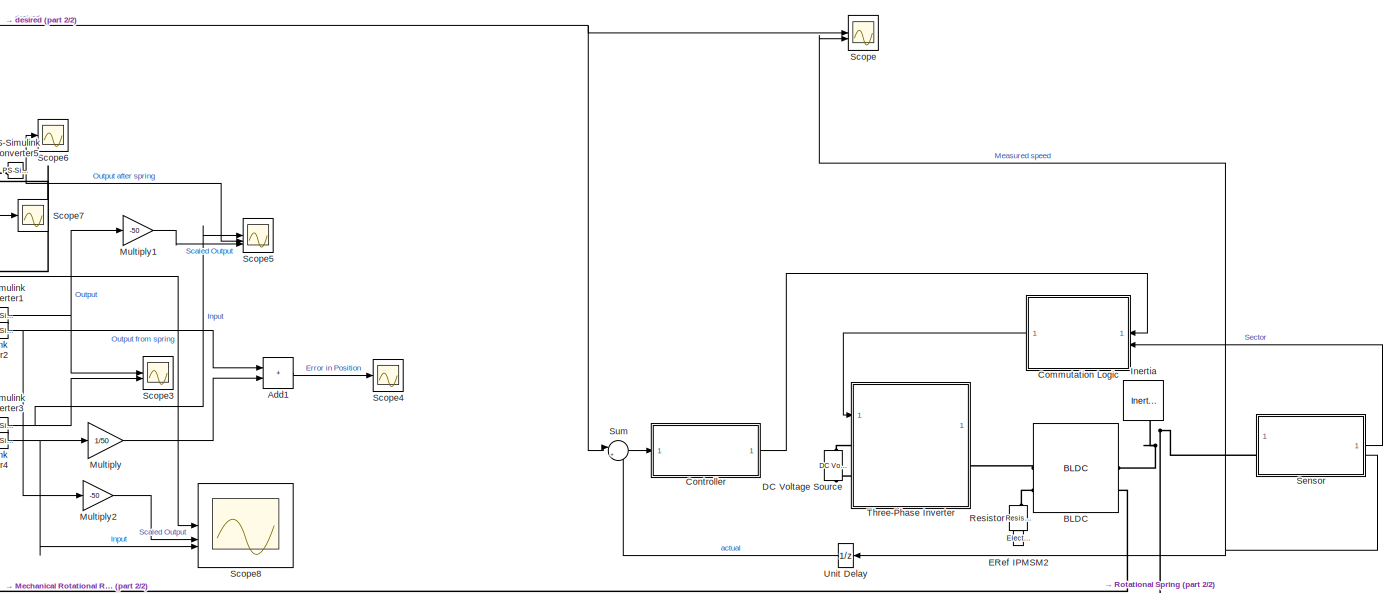
[diagram: root canvas - part 1/2, right side, full height]
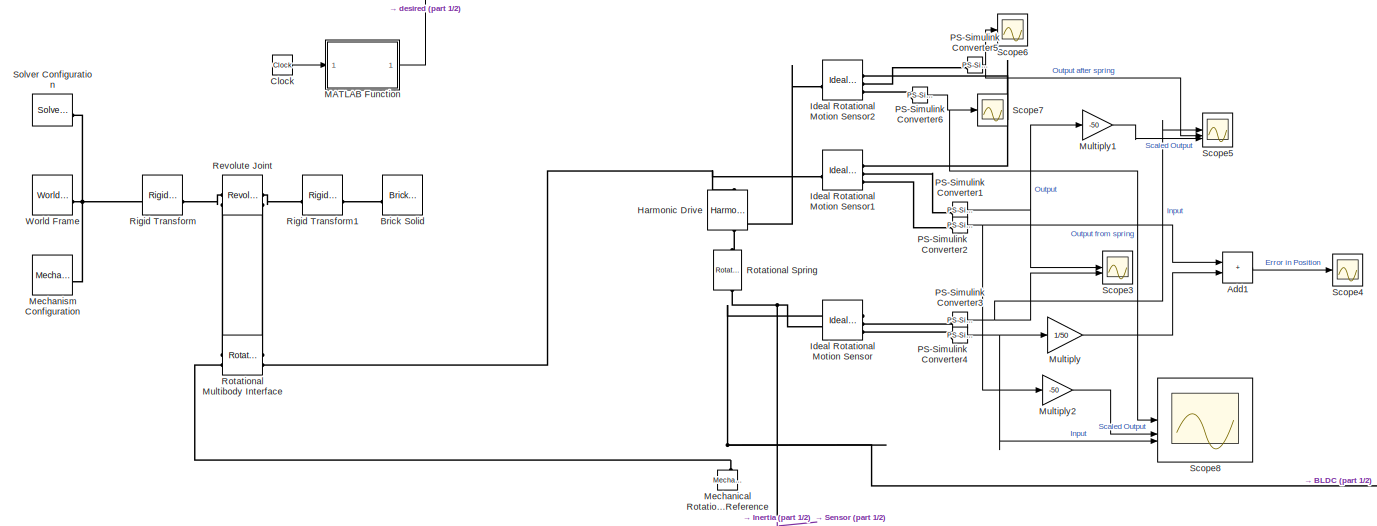
[diagram: root canvas - part 2/2, left side, full height]
MODEL slx_65fdd9fc3e5f
KIND model
CONFIG AbsTol = auto
CONFIG EnableMultiTasking = on
CONFIG FixedStep = auto
CONFIG MaxStep = auto
CONFIG MinStep = auto
CONFIG RelTol = 1e-3
CONFIG SampleTimeConstraint = Unconstrained
CONFIG SolverName = VariableStepAuto
CONFIG StartTime = 0.0
CONFIG StopTime = 10
BLOCK [Sum] Add1
  IconShape = rectangular
BLOCK [Reference] BLDC  REF=ee_lib/Electromechanical/Permanent Magnet/BLDC
  SourceBlock = ee_lib/Electromechanical/Permanent Magnet/BLDC
  SourceType = BLDC
BLOCK [Reference] Brick Solid  REF=sm_lib/Body Elements/Brick Solid
  NameLocation = right
  SourceBlock = sm_lib/Body Elements/Brick Solid
  SourceType = Brick Solid
BLOCK [Clock] Clock
  DisplayTime = on
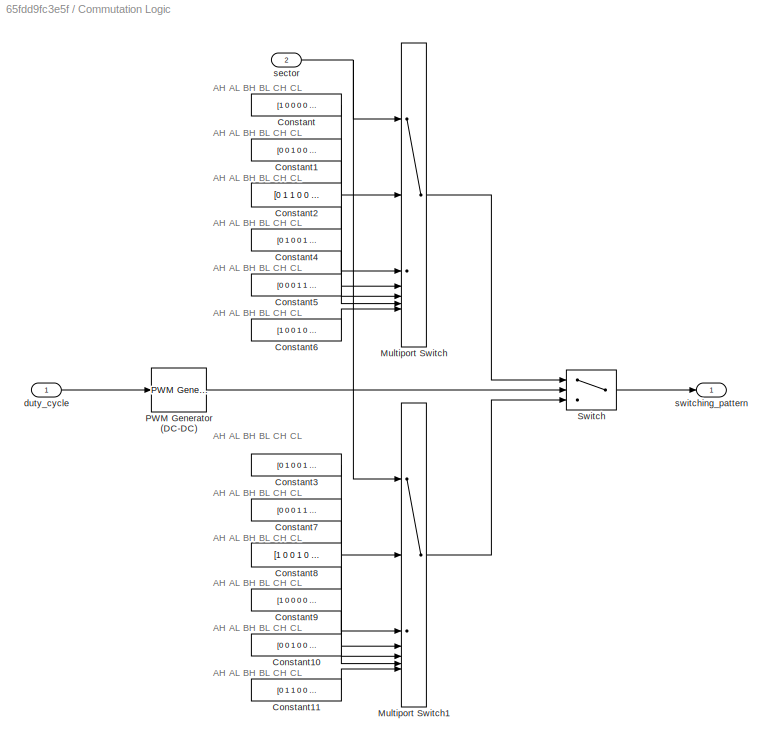
BLOCK [SubSystem] Commutation Logic
  ShowPortLabels = none
BLOCK [Outport] Commutation Logic/  switching_pattern
  VectorParamsAs1DForOutWhenUnconnected = off
BLOCK [Constant] Commutation Logic/Constant
  Value = [1 0 0 0 0 1]
BLOCK [Constant] Commutation Logic/Constant1
  Value = [0 0 1 0 0 1]
BLOCK [Constant] Commutation Logic/Constant10
  Value = [0 0 1 0 0 1]
BLOCK [Constant] Commutation Logic/Constant11
  Value = [0 1 1 0 0 0]
BLOCK [Constant] Commutation Logic/Constant2
  Value = [0 1 1 0 0 0]
BLOCK [Constant] Commutation Logic/Constant3
  Value = [0 1 0 0 1 0]
BLOCK [Constant] Commutation Logic/Constant4
  Value = [0 1 0 0 1 0]
BLOCK [Constant] Commutation Logic/Constant5
  Value = [0 0 0 1 1 0]
BLOCK [Constant] Commutation Logic/Constant6
  Value = [1 0 0 1 0 0]
BLOCK [Constant] Commutation Logic/Constant7
  Value = [0 0 0 1 1 0]
BLOCK [Constant] Commutation Logic/Constant8
  Value = [1 0 0 1 0 0]
BLOCK [Constant] Commutation Logic/Constant9
  Value = [1 0 0 0 0 1]
BLOCK [MultiPortSwitch] Commutation Logic/Multiport Switch
  InputSameDT = off
  Inputs = 6
  SaturateOnIntegerOverflow = off
BLOCK [MultiPortSwitch] Commutation Logic/Multiport Switch1
  InputSameDT = off
  Inputs = 6
  SaturateOnIntegerOverflow = off
BLOCK [Reference] Commutation Logic/PWM Generator (DC-DC)  REF=spsPWMGeneratorDCDCLib/PWM Generator
(DC-DC)
  LibrarySourceBlock = sps_lib/Power Electronics/Power Electronics Control/PWM Generator\n(DC-DC)
  SourceBlock = spsPWMGeneratorDCDCLib/PWM Generator\n(DC-DC)
  SourceType = PWM Generator (DC-DC)
BLOCK [Switch] Commutation Logic/Switch
  Criteria = u2 > Threshold
  InputSameDT = off
  SaturateOnIntegerOverflow = off
  Threshold = 0.5
BLOCK [Inport] Commutation Logic/duty_cycle
BLOCK [Inport] Commutation Logic/sector
  NameLocation = top
  Port = 2
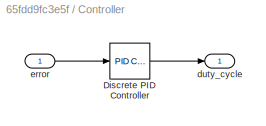
BLOCK [SubSystem] Controller
BLOCK [Reference] Controller/Discrete PID Controller  REF=slpidlib/PID Controller
  SourceBlock = slpidlib/PID Controller
  SourceType = PID 1dof
BLOCK [Outport] Controller/duty_cycle
BLOCK [Inport] Controller/error
BLOCK [Reference] DC Voltage Source  REF=ee_lib/Additional
Components/SPICE Sources/DC Voltage Source
  NameLocation = right
  SourceBlock = ee_lib/Additional\nComponents/SPICE Sources/DC Voltage Source
  SourceType = DC Voltage Source
BLOCK [Reference] ERef IPMSM2  REF=fl_lib/Electrical/Electrical Elements/Electrical Reference
  NameLocation = right
  SourceBlock = fl_lib/Electrical/Electrical Elements/Electrical Reference
  SourceType = Electrical Reference
BLOCK [Reference] Harmonic Drive  REF=sdl_lib/Gears/Harmonic Drive
  NameLocation = right
  SourceBlock = sdl_lib/Gears/Harmonic Drive
  SourceType = Harmonic Drive
BLOCK [Reference] Ideal Rotational Motion Sensor  REF=fl_lib/Mechanical/Mechanical Sensors/Ideal Rotational
Motion Sensor
  SourceBlock = fl_lib/Mechanical/Mechanical Sensors/Ideal Rotational\nMotion Sensor
  SourceType = Ideal Rotational\nMotion Sensor
BLOCK [Reference] Ideal Rotational Motion Sensor1  REF=fl_lib/Mechanical/Mechanical Sensors/Ideal Rotational
Motion Sensor
  SourceBlock = fl_lib/Mechanical/Mechanical Sensors/Ideal Rotational\nMotion Sensor
  SourceType = Ideal Rotational\nMotion Sensor
BLOCK [Reference] Ideal Rotational Motion Sensor2  REF=fl_lib/Mechanical/Mechanical Sensors/Ideal Rotational
Motion Sensor
  SourceBlock = fl_lib/Mechanical/Mechanical Sensors/Ideal Rotational\nMotion Sensor
  SourceType = Ideal Rotational\nMotion Sensor
BLOCK [Reference] Inertia  REF=fl_lib/Mechanical/Rotational Elements/Inertia
  NameLocation = left
  SourceBlock = fl_lib/Mechanical/Rotational Elements/Inertia
  SourceType = Inertia
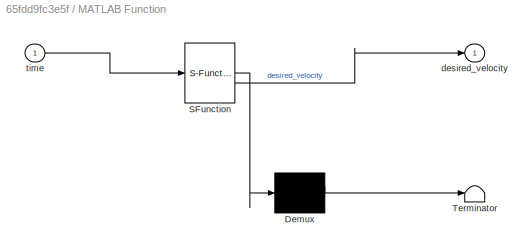
BLOCK [SubSystem] MATLAB Function
  ErrorFcn = Stateflow.Translate.translate
  LibrarySourceBlock = simulink/User-Defined\nFunctions/MATLAB Function
  PermitHierarchicalResolution = ExplicitOnly
  SFBlockType = MATLAB Function
  TreatAsAtomicUnit = on
BLOCK [Demux] MATLAB Function/ Demux 
  Outputs = 1
BLOCK [S-Function] MATLAB Function/ SFunction 
  EnableBusSupport = on
  FunctionName = sf_sfun
  PortCounts = [1 2]
  SFcnIsStateOwnerBlock = off
  SFunctionDeploymentMode = off
  Tag = Stateflow S-Function 2
BLOCK [Terminator] MATLAB Function/ Terminator 
BLOCK [Outport] MATLAB Function/desired_velocity
BLOCK [Inport] MATLAB Function/time
BLOCK [Reference] Mechanical Rotational Reference  REF=fl_lib/Mechanical/Rotational Elements/Mechanical
Rotational Reference
  NameLocation = right
  SourceBlock = fl_lib/Mechanical/Rotational Elements/Mechanical\nRotational Reference
  SourceType = Mechanical\nRotational Reference
BLOCK [Reference] Mechanism Configuration  REF=sm_lib/Utilities/Mechanism
Configuration
  SourceBlock = sm_lib/Utilities/Mechanism\nConfiguration
  SourceType = Mechanism\nConfiguration
BLOCK [Gain] Multiply
  Gain = 1/50
BLOCK [Gain] Multiply1
  Gain = -50
BLOCK [Gain] Multiply2
  Gain = -50
BLOCK [Reference] PS-Simulink Converter1  REF=nesl_utility/PS-Simulink
Converter
  SourceBlock = nesl_utility/PS-Simulink\nConverter
  SourceType = PS-Simulink\nConverter
BLOCK [Reference] PS-Simulink Converter2  REF=nesl_utility/PS-Simulink
Converter
  SourceBlock = nesl_utility/PS-Simulink\nConverter
  SourceType = PS-Simulink\nConverter
BLOCK [Reference] PS-Simulink Converter3  REF=nesl_utility/PS-Simulink
Converter
  SourceBlock = nesl_utility/PS-Simulink\nConverter
  SourceType = PS-Simulink\nConverter
BLOCK [Reference] PS-Simulink Converter4  REF=nesl_utility/PS-Simulink
Converter
  SourceBlock = nesl_utility/PS-Simulink\nConverter
  SourceType = PS-Simulink\nConverter
BLOCK [Reference] PS-Simulink Converter5  REF=nesl_utility/PS-Simulink
Converter
  SourceBlock = nesl_utility/PS-Simulink\nConverter
  SourceType = PS-Simulink\nConverter
BLOCK [Reference] PS-Simulink Converter6  REF=nesl_utility/PS-Simulink
Converter
  SourceBlock = nesl_utility/PS-Simulink\nConverter
  SourceType = PS-Simulink\nConverter
BLOCK [Reference] Resistor  REF=fl_lib/Electrical/Electrical Elements/Resistor
  NameLocation = left
  SourceBlock = fl_lib/Electrical/Electrical Elements/Resistor
  SourceType = Resistor
BLOCK [Reference] Revolute Joint  REF=sm_lib/Joints/Revolute Joint
  SourceBlock = sm_lib/Joints/Revolute Joint
  SourceType = Revolute Joint
BLOCK [Reference] Rigid Transform  REF=sm_lib/Frames and
Transforms/Rigid
Transform
  SourceBlock = sm_lib/Frames and\nTransforms/Rigid\nTransform
  SourceType = Rigid\nTransform
BLOCK [Reference] Rigid Transform1  REF=sm_lib/Frames and
Transforms/Rigid
Transform
  NameLocation = top
  SourceBlock = sm_lib/Frames and\nTransforms/Rigid\nTransform
  SourceType = Rigid\nTransform
BLOCK [Reference] Rotational Multibody Interface  REF=fl_lib/Mechanical/Multibody Interfaces/Rotational Multibody
Interface
  SourceBlock = fl_lib/Mechanical/Multibody Interfaces/Rotational Multibody\nInterface
  SourceType = Rotational Multibody\nInterface
BLOCK [Reference] Rotational Spring  REF=fl_lib/Mechanical/Rotational Elements/Rotational Spring
  NameLocation = left
  SourceBlock = fl_lib/Mechanical/Rotational Elements/Rotational Spring
  SourceType = Rotational Spring
BLOCK [Scope] Scope
  Floating = off
  NumInputPorts = 2
  ScopeSpecificationString = Simulink.scopes.TimeScopeBlockCfg('CurrentConfiguration', extmgr.ConfigurationSet(extmgr.Configuration('Core','General UI',true),extmgr.Configuration('Core','Source UI',true),extmgr.Configuration('Sources','WiredSimulink',true,'DataLoggingVariableName','ScopeData1'),extmgr.Configuration('Visuals','Time Domain',true,'SerializedDisplays',{struct('MinYLimReal','-656.0249','MaxYLimReal','920.76192','Y...<+1510ch>
BLOCK [Scope] Scope3
  Floating = off
  NumInputPorts = 2
  ScopeSpecificationString = Simulink.scopes.TimeScopeBlockCfg('CurrentConfiguration', extmgr.ConfigurationSet(extmgr.Configuration('Core','General UI',true),extmgr.Configuration('Core','Source UI',true),extmgr.Configuration('Sources','WiredSimulink',true,'DataLoggingVariableName','ScopeData3'),extmgr.Configuration('Visuals','Time Domain',true,'SerializedDisplays',{struct('MinYLimReal','-720.64429','MaxYLimReal','828.31186','...<+1457ch>
BLOCK [Scope] Scope4
  Floating = off
  NumInputPorts = 1
  ScopeSpecificationString = Simulink.scopes.TimeScopeBlockCfg('CurrentConfiguration', extmgr.ConfigurationSet(extmgr.Configuration('Core','General UI',true),extmgr.Configuration('Core','Source UI',true),extmgr.Configuration('Sources','WiredSimulink',true,'DataLoggingVariableName','ScopeData4'),extmgr.Configuration('Visuals','Time Domain',true,'SerializedDisplays',{struct('MinYLimReal','-0.00059','MaxYLimReal','0.00347','YLab...<+1429ch>
BLOCK [Scope] Scope5
  Floating = off
  NumInputPorts = 3
  ScopeSpecificationString = Simulink.scopes.TimeScopeBlockCfg('CurrentConfiguration', extmgr.ConfigurationSet(extmgr.Configuration('Core','General UI',true),extmgr.Configuration('Core','Source UI',true),extmgr.Configuration('Sources','WiredSimulink',true,'DataLoggingVariableName','ScopeData1'),extmgr.Configuration('Visuals','Time Domain',true,'SerializedDisplays',{struct('MinYLimReal','-68.69877','MaxYLimReal','96.42196','YL...<+1546ch>
BLOCK [Scope] Scope6
  Floating = off
  NumInputPorts = 1
  ScopeSpecificationString = Simulink.scopes.TimeScopeBlockCfg('CurrentConfiguration', extmgr.ConfigurationSet(extmgr.Configuration('Core','General UI',true),extmgr.Configuration('Core','Source UI',true),extmgr.Configuration('Sources','WiredSimulink',true,'DataLoggingVariableName','ScopeData2'),extmgr.Configuration('Visuals','Time Domain',true,'SerializedDisplays',{struct('MinYLimReal','-200.74154','MaxYLimReal','1054.86572',...<+1468ch>
BLOCK [Scope] Scope7
  Floating = off
  NumInputPorts = 1
  ScopeSpecificationString = Simulink.scopes.TimeScopeBlockCfg('CurrentConfiguration', extmgr.ConfigurationSet(extmgr.Configuration('Core','General UI',true),extmgr.Configuration('Core','Source UI',true),extmgr.Configuration('Sources','WiredSimulink',true,'DataLoggingVariableName','ScopeData3'),extmgr.Configuration('Visuals','Time Domain',true),extmgr.Configuration('Tools','Plot Navigation',true),extmgr.Configuration('Tools',...<+40ch>
BLOCK [Scope] Scope8
  Floating = off
  NumInputPorts = 3
  ScopeSpecificationString = Simulink.scopes.TimeScopeBlockCfg('CurrentConfiguration', extmgr.ConfigurationSet(extmgr.Configuration('Core','General UI',true),extmgr.Configuration('Core','Source UI',true),extmgr.Configuration('Sources','WiredSimulink',true,'DataLoggingVariableName','ScopeData4'),extmgr.Configuration('Visuals','Time Domain',true,'SerializedDisplays',{struct('MinYLimReal','-0.22995','MaxYLimReal','2.05264','YLab...<+1539ch>
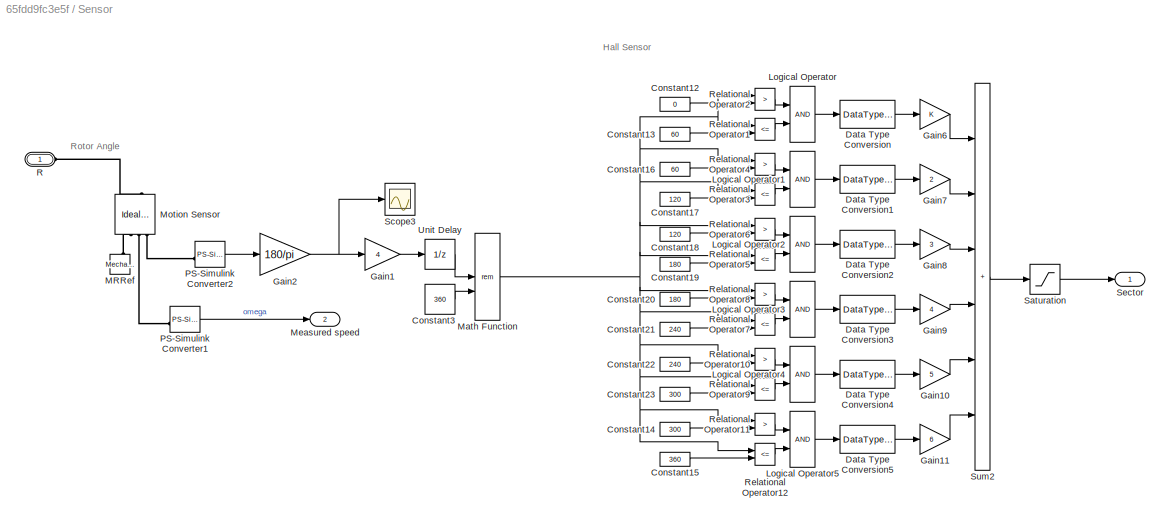
BLOCK [SubSystem] Sensor
BLOCK [Constant] Sensor/Constant12
  Value = 0
BLOCK [Constant] Sensor/Constant13
  Value = 60
BLOCK [Constant] Sensor/Constant14
  Value = 300
BLOCK [Constant] Sensor/Constant15
  Value = 360
BLOCK [Constant] Sensor/Constant16
  Value = 60
BLOCK [Constant] Sensor/Constant17
  Value = 120
BLOCK [Constant] Sensor/Constant18
  Value = 120
BLOCK [Constant] Sensor/Constant19
  Value = 180
BLOCK [Constant] Sensor/Constant20
  Value = 180
BLOCK [Constant] Sensor/Constant21
  Value = 240
BLOCK [Constant] Sensor/Constant22
  Value = 240
BLOCK [Constant] Sensor/Constant23
  Value = 300
BLOCK [Constant] Sensor/Constant3
  Value = 360
BLOCK [DataTypeConversion] Sensor/Data Type Conversion
BLOCK [DataTypeConversion] Sensor/Data Type Conversion1
BLOCK [DataTypeConversion] Sensor/Data Type Conversion2
BLOCK [DataTypeConversion] Sensor/Data Type Conversion3
BLOCK [DataTypeConversion] Sensor/Data Type Conversion4
BLOCK [DataTypeConversion] Sensor/Data Type Conversion5
BLOCK [Gain] Sensor/Gain1
  Gain = 4
  NameLocation = top
BLOCK [Gain] Sensor/Gain10
  Gain = 5
  OutDataTypeStr = Inherit: Same as input
  ParamDataTypeStr = Inherit: Same as input
  SaturateOnIntegerOverflow = on
BLOCK [Gain] Sensor/Gain11
  Gain = 6
  OutDataTypeStr = Inherit: Same as input
  ParamDataTypeStr = Inherit: Same as input
  SaturateOnIntegerOverflow = on
BLOCK [Gain] Sensor/Gain2
  Gain = 180/pi
BLOCK [Gain] Sensor/Gain6
  OutDataTypeStr = Inherit: Same as input
  ParamDataTypeStr = Inherit: Same as input
  SaturateOnIntegerOverflow = on
BLOCK [Gain] Sensor/Gain7
  Gain = 2
  OutDataTypeStr = Inherit: Same as input
  ParamDataTypeStr = Inherit: Same as input
  SaturateOnIntegerOverflow = on
BLOCK [Gain] Sensor/Gain8
  Gain = 3
  OutDataTypeStr = Inherit: Same as input
  ParamDataTypeStr = Inherit: Same as input
  SaturateOnIntegerOverflow = on
BLOCK [Gain] Sensor/Gain9
  Gain = 4
  OutDataTypeStr = Inherit: Same as input
  ParamDataTypeStr = Inherit: Same as input
  SaturateOnIntegerOverflow = on
BLOCK [Logic] Sensor/Logical Operator
BLOCK [Logic] Sensor/Logical Operator1
BLOCK [Logic] Sensor/Logical Operator2
BLOCK [Logic] Sensor/Logical Operator3
BLOCK [Logic] Sensor/Logical Operator4
BLOCK [Logic] Sensor/Logical Operator5
BLOCK [Reference] Sensor/MRRef  REF=fl_lib/Mechanical/Rotational Elements/Mechanical
Rotational Reference
  NameLocation = left
  SourceBlock = fl_lib/Mechanical/Rotational Elements/Mechanical\nRotational Reference
  SourceType = Mechanical\nRotational Reference
BLOCK [Math] Sensor/Math Function
  Operator = rem
  SignedPower = on
BLOCK [Outport] Sensor/Measured speed
  Port = 2
BLOCK [Reference] Sensor/Motion Sensor  REF=fl_lib/Mechanical/Mechanical Sensors/Ideal Rotational
Motion Sensor
  NameLocation = right
  SourceBlock = fl_lib/Mechanical/Mechanical Sensors/Ideal Rotational\nMotion Sensor
  SourceType = Ideal Rotational\nMotion Sensor
BLOCK [Reference] Sensor/PS-Simulink Converter1  REF=nesl_utility/PS-Simulink
Converter
  SourceBlock = nesl_utility/PS-Simulink\nConverter
  SourceType = PS-Simulink\nConverter
BLOCK [Reference] Sensor/PS-Simulink Converter2  REF=nesl_utility/PS-Simulink
Converter
  SourceBlock = nesl_utility/PS-Simulink\nConverter
  SourceType = PS-Simulink\nConverter
BLOCK [PMIOPort] Sensor/R
  NameLocation = top
  Side = Left
BLOCK [RelationalOperator] Sensor/Relational Operator1
  Operator = <=
BLOCK [RelationalOperator] Sensor/Relational Operator10
  Operator = >
BLOCK [RelationalOperator] Sensor/Relational Operator11
  Operator = >
BLOCK [RelationalOperator] Sensor/Relational Operator12
  Operator = <=
BLOCK [RelationalOperator] Sensor/Relational Operator2
  Operator = >
BLOCK [RelationalOperator] Sensor/Relational Operator3
  Operator = <=
BLOCK [RelationalOperator] Sensor/Relational Operator4
  Operator = >
BLOCK [RelationalOperator] Sensor/Relational Operator5
  Operator = <=
BLOCK [RelationalOperator] Sensor/Relational Operator6
  Operator = >
BLOCK [RelationalOperator] Sensor/Relational Operator7
  Operator = <=
BLOCK [RelationalOperator] Sensor/Relational Operator8
  Operator = >
BLOCK [RelationalOperator] Sensor/Relational Operator9
  Operator = <=
BLOCK [Saturate] Sensor/Saturation
  LowerLimit = 1
  UpperLimit = 6
BLOCK [Scope] Sensor/Scope3
  Floating = off
  NumInputPorts = 1
  ScopeSpecificationString = Simulink.scopes.TimeScopeBlockCfg('CurrentConfiguration', extmgr.ConfigurationSet(extmgr.Configuration('Core','General UI',true),extmgr.Configuration('Core','Source UI',true),extmgr.Configuration('Sources','WiredSimulink',true,'DataLoggingVariableName','ScopeData1','DataLogging',true,'DataLoggingSaveFormat','StructureWithTime'),extmgr.Configuration('Visuals','Time Domain',true,'SerializedDisplays'...<+1543ch>
BLOCK [Outport] Sensor/Sector
  NameLocation = top
BLOCK [Sum] Sensor/Sum2
  IconShape = rectangular
  InputSameDT = on
  Inputs = ++++++
  OutDataTypeStr = Inherit: Same as first input
  SaturateOnIntegerOverflow = on
BLOCK [UnitDelay] Sensor/Unit Delay
  HasFrameUpgradeWarning = on
  SampleTime = Ts_motor
BLOCK [Reference] Solver Configuration  REF=nesl_utility/Solver
Configuration
  SourceBlock = nesl_utility/Solver\nConfiguration
  SourceType = Solver\nConfiguration
BLOCK [Sum] Sum
  Inputs = |+-
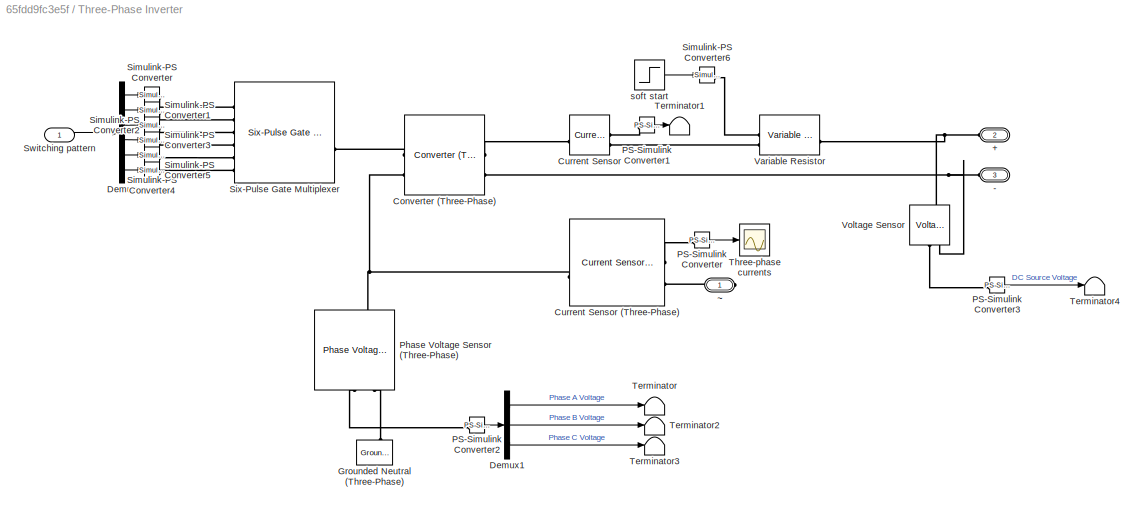
BLOCK [SubSystem] Three-Phase Inverter
BLOCK [PMIOPort] Three-Phase Inverter/+
  NameLocation = top
  Port = 2
  Side = Left
BLOCK [PMIOPort] Three-Phase Inverter/-
  NameLocation = top
  Port = 3
  Side = Left
BLOCK [Reference] Three-Phase Inverter/Converter (Three-Phase)  REF=ee_lib/Semiconductors &
Converters/Converters/Converter
(Three-Phase)
  SourceBlock = ee_lib/Semiconductors &\nConverters/Converters/Converter\n(Three-Phase)
  SourceType = Converter\n(Three-Phase)
BLOCK [Reference] Three-Phase Inverter/Current Sensor  REF=fl_lib/Electrical/Electrical Sensors/Current Sensor
  SourceBlock = fl_lib/Electrical/Electrical Sensors/Current Sensor
  SourceType = Current Sensor
BLOCK [Reference] Three-Phase Inverter/Current Sensor (Three-Phase)  REF=ee_lib/Sensors &
Transducers/Current Sensor
(Three-Phase)
  SourceBlock = ee_lib/Sensors &\nTransducers/Current Sensor\n(Three-Phase)
  SourceType = Current Sensor\n(Three-Phase)
BLOCK [Demux] Three-Phase Inverter/Demux
  Outputs = 6
BLOCK [Demux] Three-Phase Inverter/Demux1
  Outputs = 3
BLOCK [Reference] Three-Phase Inverter/Grounded Neutral (Three-Phase)  REF=ee_lib/Connectors &
References/Grounded Neutral
(Three-Phase)
  NameLocation = right
  SourceBlock = ee_lib/Connectors &\nReferences/Grounded Neutral\n(Three-Phase)
  SourceType = Grounded Neutral\n(Three-Phase)
BLOCK [Reference] Three-Phase Inverter/PS-Simulink Converter  REF=nesl_utility/PS-Simulink
Converter
  SourceBlock = nesl_utility/PS-Simulink\nConverter
  SourceType = PS-Simulink\nConverter
BLOCK [Reference] Three-Phase Inverter/PS-Simulink Converter1  REF=nesl_utility/PS-Simulink
Converter
  SourceBlock = nesl_utility/PS-Simulink\nConverter
  SourceType = PS-Simulink\nConverter
BLOCK [Reference] Three-Phase Inverter/PS-Simulink Converter2  REF=nesl_utility/PS-Simulink
Converter
  SourceBlock = nesl_utility/PS-Simulink\nConverter
  SourceType = PS-Simulink\nConverter
BLOCK [Reference] Three-Phase Inverter/PS-Simulink Converter3  REF=nesl_utility/PS-Simulink
Converter
  SourceBlock = nesl_utility/PS-Simulink\nConverter
  SourceType = PS-Simulink\nConverter
BLOCK [Reference] Three-Phase Inverter/Phase Voltage Sensor (Three-Phase)  REF=ee_lib/Sensors &
Transducers/Phase Voltage Sensor
(Three-Phase)
  NameLocation = right
  SourceBlock = ee_lib/Sensors &\nTransducers/Phase Voltage Sensor\n(Three-Phase)
  SourceType = Phase Voltage Sensor\n(Three-Phase)
BLOCK [Reference] Three-Phase Inverter/Simulink-PS Converter  REF=nesl_utility/Simulink-PS
Converter
  SourceBlock = nesl_utility/Simulink-PS\nConverter
  SourceType = Simulink-PS\nConverter
BLOCK [Reference] Three-Phase Inverter/Simulink-PS Converter1  REF=nesl_utility/Simulink-PS
Converter
  SourceBlock = nesl_utility/Simulink-PS\nConverter
  SourceType = Simulink-PS\nConverter
BLOCK [Reference] Three-Phase Inverter/Simulink-PS Converter2  REF=nesl_utility/Simulink-PS
Converter
  SourceBlock = nesl_utility/Simulink-PS\nConverter
  SourceType = Simulink-PS\nConverter
BLOCK [Reference] Three-Phase Inverter/Simulink-PS Converter3  REF=nesl_utility/Simulink-PS
Converter
  SourceBlock = nesl_utility/Simulink-PS\nConverter
  SourceType = Simulink-PS\nConverter
BLOCK [Reference] Three-Phase Inverter/Simulink-PS Converter4  REF=nesl_utility/Simulink-PS
Converter
  SourceBlock = nesl_utility/Simulink-PS\nConverter
  SourceType = Simulink-PS\nConverter
BLOCK [Reference] Three-Phase Inverter/Simulink-PS Converter5  REF=nesl_utility/Simulink-PS
Converter
  SourceBlock = nesl_utility/Simulink-PS\nConverter
  SourceType = Simulink-PS\nConverter
BLOCK [Reference] Three-Phase Inverter/Simulink-PS Converter6  REF=nesl_utility/Simulink-PS
Converter
  SourceBlock = nesl_utility/Simulink-PS\nConverter
  SourceType = Simulink-PS\nConverter
BLOCK [Reference] Three-Phase Inverter/Six-Pulse Gate Multiplexer  REF=ee_lib/Semiconductors &
Converters/Converters/Six-Pulse Gate
Multiplexer
  SourceBlock = ee_lib/Semiconductors &\nConverters/Converters/Six-Pulse Gate\nMultiplexer
  SourceType = Six-Pulse Gate\nMultiplexer
BLOCK [Inport] Three-Phase Inverter/Switching pattern
BLOCK [Terminator] Three-Phase Inverter/Terminator
BLOCK [Terminator] Three-Phase Inverter/Terminator1
BLOCK [Terminator] Three-Phase Inverter/Terminator2
BLOCK [Terminator] Three-Phase Inverter/Terminator3
BLOCK [Terminator] Three-Phase Inverter/Terminator4
BLOCK [Scope] Three-Phase Inverter/Three-phase currents
  Floating = off
  NumInputPorts = 1
  ScopeSpecificationString = Simulink.scopes.TimeScopeBlockCfg('CurrentConfiguration', extmgr.ConfigurationSet(extmgr.Configuration('Core','General UI',true),extmgr.Configuration('Core','Source UI',true),extmgr.Configuration('Sources','WiredSimulink',true,'DataLoggingVariableName','ScopeData1'),extmgr.Configuration('Visuals','Time Domain',true,'SerializedDisplays',{struct('MinYLimReal','-1248.2374','MaxYLimReal','1248.23739',...<+1452ch>
BLOCK [Reference] Three-Phase Inverter/Variable Resistor  REF=fl_lib/Electrical/Electrical Elements/Variable Resistor
  SourceBlock = fl_lib/Electrical/Electrical Elements/Variable Resistor
  SourceType = Variable Resistor
BLOCK [Reference] Three-Phase Inverter/Voltage Sensor  REF=fl_lib/Electrical/Electrical Sensors/Voltage Sensor
  NameLocation = right
  SourceBlock = fl_lib/Electrical/Electrical Sensors/Voltage Sensor
  SourceType = Voltage Sensor
BLOCK [Step] Three-Phase Inverter/soft start
  After = 1e-3
  Before = 0.5
  SampleTime = Ts_motor
  Time = 4
BLOCK [PMIOPort] Three-Phase Inverter/~
  Side = Right
BLOCK [UnitDelay] Unit Delay
  HasFrameUpgradeWarning = on
  SampleTime = -1
BLOCK [Reference] World Frame  REF=sm_lib/Frames and
Transforms/World Frame
  SourceBlock = sm_lib/Frames and\nTransforms/World Frame
  SourceType = World Frame
ANNOTATION Commutation Logic: AH AL BH BL CH CL
ANNOTATION Sensor: Hall Sensor
ANNOTATION Sensor: Rotor Angle
LINE Add1:1 -> Scope4:1
LINE Clock:1 -> MATLAB Function:1
LINE Commutation Logic/Constant10:1 -> Commutation Logic/Multiport Switch1:6
LINE Commutation Logic/Constant11:1 -> Commutation Logic/Multiport Switch1:7
LINE Commutation Logic/Constant1:1 -> Commutation Logic/Multiport Switch:3
LINE Commutation Logic/Constant2:1 -> Commutation Logic/Multiport Switch:4
LINE Commutation Logic/Constant3:1 -> Commutation Logic/Multiport Switch1:2
LINE Commutation Logic/Constant4:1 -> Commutation Logic/Multiport Switch:5
LINE Commutation Logic/Constant5:1 -> Commutation Logic/Multiport Switch:6
LINE Commutation Logic/Constant6:1 -> Commutation Logic/Multiport Switch:7
LINE Commutation Logic/Constant7:1 -> Commutation Logic/Multiport Switch1:3
LINE Commutation Logic/Constant8:1 -> Commutation Logic/Multiport Switch1:4
LINE Commutation Logic/Constant9:1 -> Commutation Logic/Multiport Switch1:5
LINE Commutation Logic/Constant:1 -> Commutation Logic/Multiport Switch:2
LINE Commutation Logic/Multiport Switch1:1 -> Commutation Logic/Switch:3
LINE Commutation Logic/Multiport Switch:1 -> Commutation Logic/Switch:1
LINE Commutation Logic/PWM Generator (DC-DC):1 -> Commutation Logic/Switch:2
LINE Commutation Logic/Switch:1 -> Commutation Logic/  switching_pattern:1
LINE Commutation Logic/duty_cycle:1 -> Commutation Logic/PWM Generator (DC-DC):1
NET Commutation Logic/sector:1 -> Commutation Logic/Multiport Switch1:1, Commutation Logic/Multiport Switch:1
LINE Commutation Logic:1 -> Three-Phase Inverter:1
LINE Controller/Discrete PID Controller:1 -> Controller/duty_cycle:1
LINE Controller/error:1 -> Controller/Discrete PID Controller:1
LINE Controller:1 -> Commutation Logic:1
NET MATLAB Function:1 -> Scope:1, Sum:1
LINE Multiply1:1 -> Scope5:3
LINE Multiply2:1 -> Scope8:2
LINE Multiply:1 -> Add1:2
NET PS-Simulink Converter1:1 -> Multiply1:1, Scope3:1
NET PS-Simulink Converter2:1 -> Add1:1, Multiply2:1
NET PS-Simulink Converter3:1 -> Scope3:2, Scope5:1
NET PS-Simulink Converter4:1 -> Multiply:1, Scope8:3
NET PS-Simulink Converter5:1 -> Scope5:2, Scope6:1
NET PS-Simulink Converter6:1 -> Scope7:1, Scope8:1
LINE Sensor/Constant12:1 -> Sensor/Relational Operator2:2
LINE Sensor/Constant13:1 -> Sensor/Relational Operator1:2
LINE Sensor/Constant14:1 -> Sensor/Relational Operator11:2
LINE Sensor/Constant15:1 -> Sensor/Relational Operator12:2
LINE Sensor/Constant16:1 -> Sensor/Relational Operator4:2
LINE Sensor/Constant17:1 -> Sensor/Relational Operator3:2
LINE Sensor/Constant18:1 -> Sensor/Relational Operator6:2
LINE Sensor/Constant19:1 -> Sensor/Relational Operator5:2
LINE Sensor/Constant20:1 -> Sensor/Relational Operator8:2
LINE Sensor/Constant21:1 -> Sensor/Relational Operator7:2
LINE Sensor/Constant22:1 -> Sensor/Relational Operator10:2
LINE Sensor/Constant23:1 -> Sensor/Relational Operator9:2
LINE Sensor/Constant3:1 -> Sensor/Math Function:2
LINE Sensor/Data Type Conversion1:1 -> Sensor/Gain7:1
LINE Sensor/Data Type Conversion2:1 -> Sensor/Gain8:1
LINE Sensor/Data Type Conversion3:1 -> Sensor/Gain9:1
LINE Sensor/Data Type Conversion4:1 -> Sensor/Gain10:1
LINE Sensor/Data Type Conversion5:1 -> Sensor/Gain11:1
LINE Sensor/Data Type Conversion:1 -> Sensor/Gain6:1
LINE Sensor/Gain10:1 -> Sensor/Sum2:5
LINE Sensor/Gain11:1 -> Sensor/Sum2:6
LINE Sensor/Gain1:1 -> Sensor/Unit Delay:1
NET Sensor/Gain2:1 -> Sensor/Gain1:1, Sensor/Scope3:1
LINE Sensor/Gain6:1 -> Sensor/Sum2:1
LINE Sensor/Gain7:1 -> Sensor/Sum2:2
LINE Sensor/Gain8:1 -> Sensor/Sum2:3
LINE Sensor/Gain9:1 -> Sensor/Sum2:4
LINE Sensor/Logical Operator1:1 -> Sensor/Data Type Conversion1:1
LINE Sensor/Logical Operator2:1 -> Sensor/Data Type Conversion2:1
LINE Sensor/Logical Operator3:1 -> Sensor/Data Type Conversion3:1
LINE Sensor/Logical Operator4:1 -> Sensor/Data Type Conversion4:1
LINE Sensor/Logical Operator5:1 -> Sensor/Data Type Conversion5:1
LINE Sensor/Logical Operator:1 -> Sensor/Data Type Conversion:1
NET Sensor/Math Function:1 -> Sensor/Relational Operator10:1, Sensor/Relational Operator11:1, Sensor/Relational Operator12:1, Sensor/Relational Operator1:1, Sensor/Relational Operator2:1, Sensor/Relational Operator3:1, Sensor/Relational Operator4:1, Sensor/Relational Operator5:1, Sensor/Relational Operator6:1, Sensor/Relational Operator7:1, Sensor/Relational Operator8:1, Sensor/Relational Operator9:1
LINE Sensor/PS-Simulink Converter1:1 -> Sensor/Measured speed:1
LINE Sensor/PS-Simulink Converter2:1 -> Sensor/Gain2:1
LINE Sensor/Relational Operator10:1 -> Sensor/Logical Operator4:1
LINE Sensor/Relational Operator11:1 -> Sensor/Logical Operator5:1
LINE Sensor/Relational Operator12:1 -> Sensor/Logical Operator5:2
LINE Sensor/Relational Operator1:1 -> Sensor/Logical Operator:2
LINE Sensor/Relational Operator2:1 -> Sensor/Logical Operator:1
LINE Sensor/Relational Operator3:1 -> Sensor/Logical Operator1:2
LINE Sensor/Relational Operator4:1 -> Sensor/Logical Operator1:1
LINE Sensor/Relational Operator5:1 -> Sensor/Logical Operator2:2
LINE Sensor/Relational Operator6:1 -> Sensor/Logical Operator2:1
LINE Sensor/Relational Operator7:1 -> Sensor/Logical Operator3:2
LINE Sensor/Relational Operator8:1 -> Sensor/Logical Operator3:1
LINE Sensor/Relational Operator9:1 -> Sensor/Logical Operator4:2
LINE Sensor/Saturation:1 -> Sensor/Sector:1
LINE Sensor/Sum2:1 -> Sensor/Saturation:1
LINE Sensor/Unit Delay:1 -> Sensor/Math Function:1
LINE Sensor:1 -> Commutation Logic:2
NET Sensor:2 -> Scope:2, Unit Delay:1
LINE Sum:1 -> Controller:1
LINE Three-Phase Inverter/Demux1:1 -> Three-Phase Inverter/Terminator:1
LINE Three-Phase Inverter/Demux1:2 -> Three-Phase Inverter/Terminator2:1
LINE Three-Phase Inverter/Demux1:3 -> Three-Phase Inverter/Terminator3:1
LINE Three-Phase Inverter/Demux:1 -> Three-Phase Inverter/Simulink-PS Converter:1
LINE Three-Phase Inverter/Demux:2 -> Three-Phase Inverter/Simulink-PS Converter1:1
LINE Three-Phase Inverter/Demux:3 -> Three-Phase Inverter/Simulink-PS Converter2:1
LINE Three-Phase Inverter/Demux:4 -> Three-Phase Inverter/Simulink-PS Converter3:1
LINE Three-Phase Inverter/Demux:5 -> Three-Phase Inverter/Simulink-PS Converter4:1
LINE Three-Phase Inverter/Demux:6 -> Three-Phase Inverter/Simulink-PS Converter5:1
LINE Three-Phase Inverter/PS-Simulink Converter1:1 -> Three-Phase Inverter/Terminator1:1
LINE Three-Phase Inverter/PS-Simulink Converter2:1 -> Three-Phase Inverter/Demux1:1
LINE Three-Phase Inverter/PS-Simulink Converter3:1 -> Three-Phase Inverter/Terminator4:1
LINE Three-Phase Inverter/PS-Simulink Converter:1 -> Three-Phase Inverter/Three-phase currents:1
LINE Three-Phase Inverter/Switching pattern:1 -> Three-Phase Inverter/Demux:1
LINE Three-Phase Inverter/soft start:1 -> Three-Phase Inverter/Simulink-PS Converter6:1
LINE Unit Delay:1 -> Sum:2
PLINE BLDC:LConn1 -- Three-Phase Inverter:RConn1
PLINE BLDC:LConn2 -- Resistor:LConn1
PNET net1: BLDC:RConn1 -- Ideal Rotational Motion Sensor:LConn1 -- Inertia:LConn1 -- Rotational Spring:RConn1 -- Sensor:LConn1
PNET net2: BLDC:RConn2 -- Ideal Rotational Motion Sensor1:RConn1 -- Ideal Rotational Motion Sensor2:RConn1 -- Ideal Rotational Motion Sensor:RConn1 -- Mechanical Rotational Reference:LConn1 -- Rotational Multibody Interface:LConn2
PLINE Brick Solid:RConn1 -- Rigid Transform1:LConn1
PLINE DC Voltage Source:LConn1 -- Three-Phase Inverter:LConn1
PLINE DC Voltage Source:RConn1 -- Three-Phase Inverter:LConn2
PLINE ERef IPMSM2:LConn1 -- Resistor:RConn1
PNET net3: Harmonic Drive:LConn1 -- Ideal Rotational Motion Sensor2:LConn1 -- Rotational Spring:LConn1
PNET net4: Harmonic Drive:RConn1 -- Ideal Rotational Motion Sensor1:LConn1 -- Rotational Multibody Interface:RConn2
PLINE Ideal Rotational Motion Sensor1:RConn2 -- PS-Simulink Converter1:LConn1
PLINE Ideal Rotational Motion Sensor1:RConn3 -- PS-Simulink Converter2:LConn1
PLINE Ideal Rotational Motion Sensor2:RConn2 -- PS-Simulink Converter5:LConn1
PLINE Ideal Rotational Motion Sensor2:RConn3 -- PS-Simulink Converter6:LConn1
PLINE Ideal Rotational Motion Sensor:RConn2 -- PS-Simulink Converter3:LConn1
PLINE Ideal Rotational Motion Sensor:RConn3 -- PS-Simulink Converter4:LConn1
PNET net5: Mechanism Configuration:RConn1 -- Rigid Transform:LConn1 -- Solver Configuration:RConn1 -- World Frame:RConn1
PLINE Revolute Joint:LConn1 -- Rigid Transform:RConn1
PLINE Revolute Joint:LConn2 -- Rotational Multibody Interface:LConn1
PLINE Revolute Joint:RConn1 -- Rigid Transform1:RConn1
PLINE Revolute Joint:RConn2 -- Rotational Multibody Interface:RConn1
PLINE Sensor/MRRef:LConn1 -- Sensor/Motion Sensor:RConn1
PLINE Sensor/Motion Sensor:LConn1 -- Sensor/R:RConn1
PLINE Sensor/Motion Sensor:RConn2 -- Sensor/PS-Simulink Converter1:LConn1
PLINE Sensor/Motion Sensor:RConn3 -- Sensor/PS-Simulink Converter2:LConn1
PNET net6: Three-Phase Inverter/+:RConn1 -- Three-Phase Inverter/Variable Resistor:RConn1 -- Three-Phase Inverter/Voltage Sensor:LConn1
PNET net7: Three-Phase Inverter/-:RConn1 -- Three-Phase Inverter/Converter (Three-Phase):RConn2 -- Three-Phase Inverter/Voltage Sensor:RConn2
PLINE Three-Phase Inverter/Converter (Three-Phase):LConn1 -- Three-Phase Inverter/Six-Pulse Gate Multiplexer:RConn1
PNET net8: Three-Phase Inverter/Converter (Three-Phase):LConn2 -- Three-Phase Inverter/Current Sensor (Three-Phase):LConn1 -- Three-Phase Inverter/Phase Voltage Sensor (Three-Phase):LConn1
PLINE Three-Phase Inverter/Converter (Three-Phase):RConn1 -- Three-Phase Inverter/Current Sensor:LConn1
PLINE Three-Phase Inverter/Current Sensor (Three-Phase):RConn1 -- Three-Phase Inverter/PS-Simulink Converter:LConn1
PLINE Three-Phase Inverter/Current Sensor (Three-Phase):RConn2 -- Three-Phase Inverter/~:RConn1
PLINE Three-Phase Inverter/Current Sensor:RConn1 -- Three-Phase Inverter/PS-Simulink Converter1:LConn1
PLINE Three-Phase Inverter/Current Sensor:RConn2 -- Three-Phase Inverter/Variable Resistor:LConn2
PLINE Three-Phase Inverter/Grounded Neutral (Three-Phase):LConn1 -- Three-Phase Inverter/Phase Voltage Sensor (Three-Phase):RConn2
PLINE Three-Phase Inverter/PS-Simulink Converter2:LConn1 -- Three-Phase Inverter/Phase Voltage Sensor (Three-Phase):RConn1
PLINE Three-Phase Inverter/PS-Simulink Converter3:LConn1 -- Three-Phase Inverter/Voltage Sensor:RConn1
PLINE Three-Phase Inverter/Simulink-PS Converter1:RConn1 -- Three-Phase Inverter/Six-Pulse Gate Multiplexer:LConn2
PLINE Three-Phase Inverter/Simulink-PS Converter2:RConn1 -- Three-Phase Inverter/Six-Pulse Gate Multiplexer:LConn3
PLINE Three-Phase Inverter/Simulink-PS Converter3:RConn1 -- Three-Phase Inverter/Six-Pulse Gate Multiplexer:LConn4
PLINE Three-Phase Inverter/Simulink-PS Converter4:RConn1 -- Three-Phase Inverter/Six-Pulse Gate Multiplexer:LConn5
PLINE Three-Phase Inverter/Simulink-PS Converter5:RConn1 -- Three-Phase Inverter/Six-Pulse Gate Multiplexer:LConn6
PLINE Three-Phase Inverter/Simulink-PS Converter6:RConn1 -- Three-Phase Inverter/Variable Resistor:LConn1
PLINE Three-Phase Inverter/Simulink-PS Converter:RConn1 -- Three-Phase Inverter/Six-Pulse Gate Multiplexer:LConn1
note: NET lines group one-source signal fan-out (src -> all destinations, sorted); 1:1 wires keep LINE; PNET lines group multi-terminal physical nets as a canonical sorted terminal list (undirected conserving connections); 2-terminal nets keep the pairwise PLINE form
CHART MATLAB Function states=1 transitions=1
  STATE_LABEL 'eML_blk_kernel()'
  STATE_LABEL 'SCRIPT:\nfunction desired_velocity = fcn(time)\n\n% if time < pi\n%     desired_velocity = 1000 * sin(time) + 10 * sin(100 * time);\n% %     y = 10 * sin(time);\n% else\n%     desired_velocity = 0;\n% end\n\nif time < 2\n    desired_velocity = 0;\nelseif time < 4\n    desired_velocity = 2 * 2 * pi;\nelseif time < 6\n    desired_velocity = 0;\nelseif time < 8\n    desired_velocity = - 2 * 2 * pi;\nelse\n    desired_v...<+17ch>'
CHART  states=0 transitions=0
